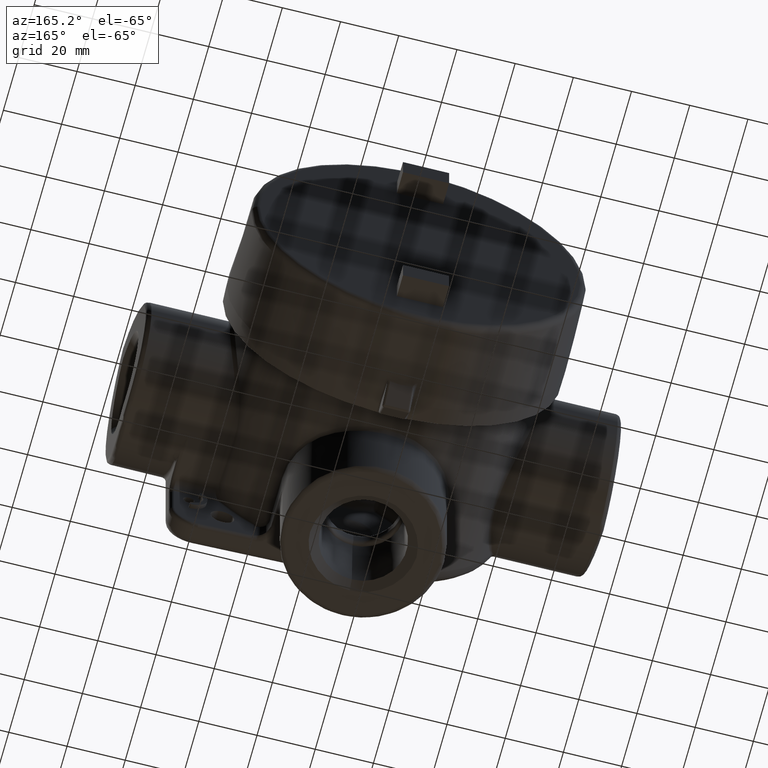
[diagram: clean part render]
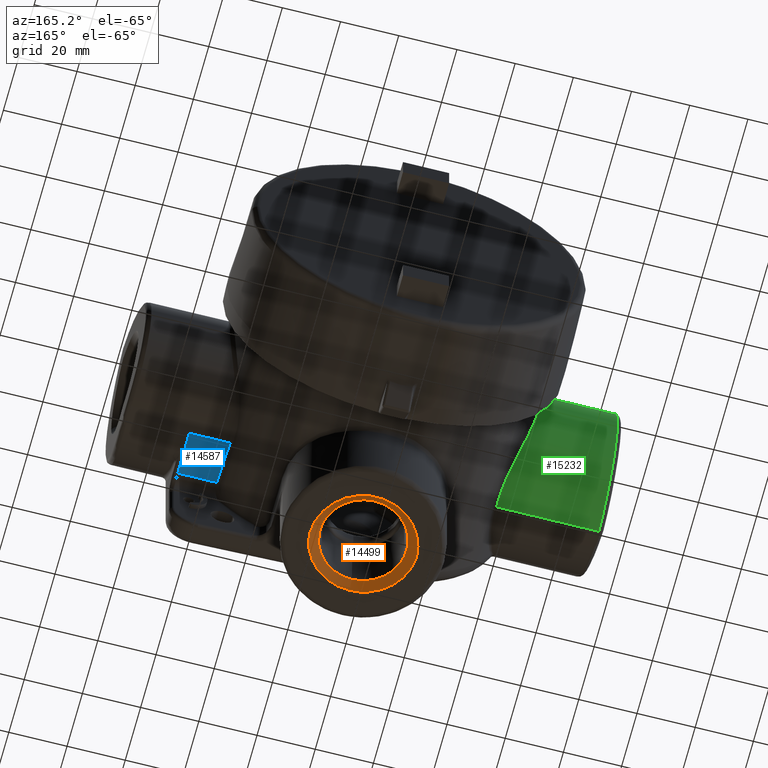
[diagram: same view with three faces highlighted in distinct colors, each labeled with its STEP entity id]
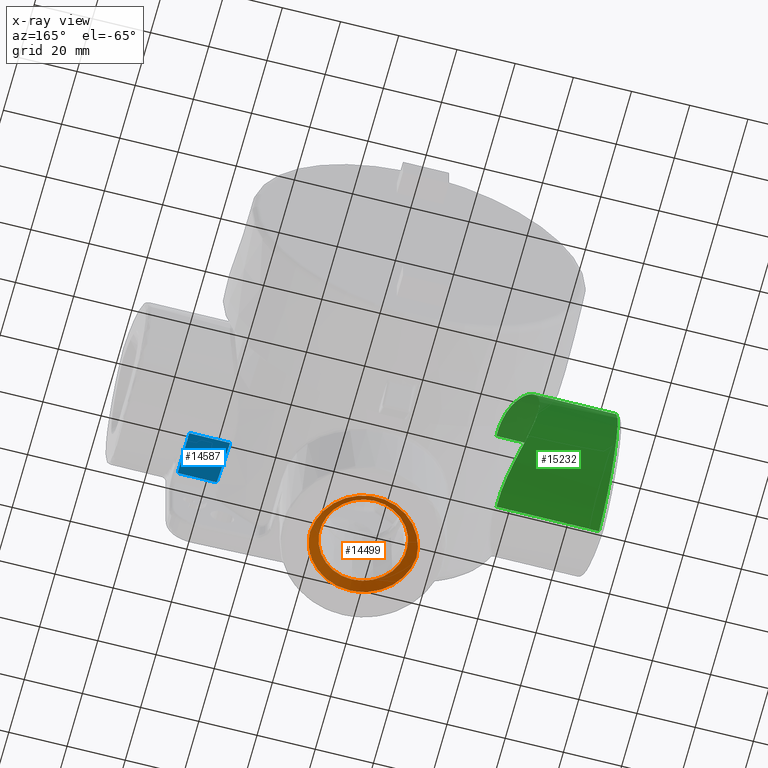
[diagram: x-ray of the same camera — body ghosted, the three highlighted faces saturated]
A machine part, auxiliary view with three faces highlighted in distinct colors.
The next image is the same camera in x-ray (body ghosted, the three faces saturated) — at least one of them is partly hidden behind the body in this view.
Their STEP definitions:

[orange] entity #14499 — the highlighted conical surface has half-angle 45 deg.
#59=ELLIPSE('',#15497,0.721819406663314,0.72093971271617);
#60=ELLIPSE('',#15498,0.721819406663387,0.720939712716097);
#61=ELLIPSE('',#15499,0.721819406663314,0.72093971271617);
#840=LINE('',#25029,#2115);
#2115=VECTOR('',#16754,0.653);
#3294=CONICAL_SURFACE('',#15496,0.653,0.78539816339745);
#3367=FACE_OUTER_BOUND('',#4245,.T.);
#4245=EDGE_LOOP('',(#10136,#10137,#10138,#10139,#10140,#10141,#10142));
#5731=CIRCLE('',#15500,0.5855);
#5732=CIRCLE('',#15501,0.5855);
#6255=VERTEX_POINT('',#25022);
#6256=VERTEX_POINT('',#25023);
#6257=VERTEX_POINT('',#25025);
#6258=VERTEX_POINT('',#25028);
#6259=VERTEX_POINT('',#25030);
#7752=EDGE_CURVE('',#6255,#6256,#59,.T.);
#7753=EDGE_CURVE('',#6257,#6255,#60,.T.);
#7754=EDGE_CURVE('',#6256,#6257,#61,.T.);
#7755=EDGE_CURVE('',#6256,#6258,#840,.T.);
#7756=EDGE_CURVE('',#6258,#6259,#5731,.T.);
#7757=EDGE_CURVE('',#6259,#6258,#5732,.T.);
#10136=ORIENTED_EDGE('',*,*,#7752,.F.);
#10137=ORIENTED_EDGE('',*,*,#7753,.F.);
#10138=ORIENTED_EDGE('',*,*,#7754,.F.);
#10139=ORIENTED_EDGE('',*,*,#7755,.T.);
#10140=ORIENTED_EDGE('',*,*,#7756,.T.);
#10141=ORIENTED_EDGE('',*,*,#7757,.T.);
#10142=ORIENTED_EDGE('',*,*,#7755,.F.);
#14499=ADVANCED_FACE('',(#3367),#3294,.F.);
#15496=AXIS2_PLACEMENT_3D('',#25021,#16746,#16747);
#15497=AXIS2_PLACEMENT_3D('',#25024,#16748,#16749);
#15498=AXIS2_PLACEMENT_3D('',#25026,#16750,#16751);
#15499=AXIS2_PLACEMENT_3D('',#25027,#16752,#16753);
#15500=AXIS2_PLACEMENT_3D('',#25031,#16755,#16756);
#15501=AXIS2_PLACEMENT_3D('',#25032,#16757,#16758);
#16746=DIRECTION('center_axis',(6.12323399573677E-17,0.,-1.));
#16747=DIRECTION('ref_axis',(0.,1.,0.));
#16748=DIRECTION('center_axis',(-6.11950388703081E-17,0.034899496702501,
0.999390827019096));
#16749=DIRECTION('ref_axis',(5.81227290568489E-15,-0.999390827019096,0.0348994967025009));
#16750=DIRECTION('center_axis',(-6.11950388703081E-17,-0.034899496702501,
0.999390827019096));
#16751=DIRECTION('ref_axis',(-1.42712772579923E-13,-0.999390827019096,-0.0348994967025011));
#16752=DIRECTION('center_axis',(-6.11950388703081E-17,0.034899496702501,
0.999390827019096));
#16753=DIRECTION('ref_axis',(5.81227290568489E-15,-0.999390827019096,0.0348994967025009));
#16754=DIRECTION('',(-1.29893408435324E-16,0.707106781186548,0.707106781186547));
#16755=DIRECTION('center_axis',(-6.12323399573677E-17,0.,1.));
#16756=DIRECTION('ref_axis',(0.,1.,0.));
#16757=DIRECTION('center_axis',(-6.12323399573677E-17,0.,1.));
#16758=DIRECTION('ref_axis',(0.,1.,0.));
#25021=CARTESIAN_POINT('Origin',(1.94871921914323E-16,-2.4056,-3.1825));
#25022=CARTESIAN_POINT('',(-0.7205,-2.4056,-3.25));
#25023=CARTESIAN_POINT('',(2.82774967622993E-16,-3.10178855978103,-3.22568855978109));
#25024=CARTESIAN_POINT('Origin',(2.62257407391769E-16,-2.38040886599735,
-3.25087969378374));
#25025=CARTESIAN_POINT('',(0.7205,-2.4056,-3.25));
#25026=CARTESIAN_POINT('Origin',(-8.74191357972564E-17,-2.43079113400265,
-3.25087969378374));
#25027=CARTESIAN_POINT('Origin',(2.62257407391769E-16,-2.38040886599735,
-3.25087969378374));
#25028=CARTESIAN_POINT('',(2.62441809057278E-16,-2.9911,-3.115));
#25029=CARTESIAN_POINT('',(2.74841357898645E-16,-3.0586,-3.1825));
#25030=CARTESIAN_POINT('',(1.907387389672E-16,-1.8201,-3.115));
#25031=CARTESIAN_POINT('Origin',(1.907387389672E-16,-2.4056,-3.115));
#25032=CARTESIAN_POINT('Origin',(1.907387389672E-16,-2.4056,-3.115));

[blue] entity #14587 — the highlighted planar face has unit normal (0, 0, -1).
#307=PLANE('',#15656);
#1022=LINE('',#25816,#2297);
#1029=LINE('',#25955,#2304);
#1030=LINE('',#25961,#2305);
#2297=VECTOR('',#17214,0.393700787401575);
#2304=VECTOR('',#17257,0.393700787401575);
#2305=VECTOR('',#17258,0.393700787401575);
#3455=FACE_OUTER_BOUND('',#4337,.T.);
#4337=EDGE_LOOP('',(#10619,#10620,#10621,#10622));
#5231=B_SPLINE_CURVE_WITH_KNOTS('',3,(#25957,#25958,#25959,#25960),
 .UNSPECIFIED.,.F.,.F.,(4,4),(0.,1.51106223936381),.UNSPECIFIED.);
#6432=VERTEX_POINT('',#25648);
#6443=VERTEX_POINT('',#25814);
#6457=VERTEX_POINT('',#25954);
#6458=VERTEX_POINT('',#25956);
#8014=EDGE_CURVE('',#6443,#6432,#1022,.T.);
#8035=EDGE_CURVE('',#6457,#6443,#1029,.T.);
#8036=EDGE_CURVE('',#6458,#6457,#5231,.T.);
#8037=EDGE_CURVE('',#6432,#6458,#1030,.T.);
#10619=ORIENTED_EDGE('',*,*,#8014,.F.);
#10620=ORIENTED_EDGE('',*,*,#8035,.F.);
#10621=ORIENTED_EDGE('',*,*,#8036,.F.);
#10622=ORIENTED_EDGE('',*,*,#8037,.F.);
#14587=ADVANCED_FACE('',(#3455),#307,.T.);
#15656=AXIS2_PLACEMENT_3D('',#25953,#17255,#17256);
#17214=DIRECTION('',(0.,1.,0.));
#17255=DIRECTION('center_axis',(0.,0.,-1.));
#17256=DIRECTION('ref_axis',(-1.,0.,0.));
#17257=DIRECTION('',(1.,1.82892759761091E-30,0.));
#17258=DIRECTION('',(-1.,0.,0.));
#25648=CARTESIAN_POINT('',(2.354,-2.4056,-1.094));
#25814=CARTESIAN_POINT('',(2.354,-3.,-1.094));
#25816=CARTESIAN_POINT('',(2.354,-3.5,-1.094));
#25953=CARTESIAN_POINT('Origin',(2.414,-3.5,-1.094));
#25954=CARTESIAN_POINT('',(1.82603284451908,-3.,-1.094));
#25955=CARTESIAN_POINT('',(1.8105,-3.,-1.094));
#25956=CARTESIAN_POINT('',(1.80149192016675,-2.4056,-1.094));
#25957=CARTESIAN_POINT('Ctrl Pts',(1.80149192016675,-2.4056,-1.094));
#25958=CARTESIAN_POINT('Ctrl Pts',(1.80968805917339,-2.60373267909171,-1.094));
#25959=CARTESIAN_POINT('Ctrl Pts',(1.81786815468551,-2.801866022453,-1.094));
#25960=CARTESIAN_POINT('Ctrl Pts',(1.82603284451908,-3.,-1.094));
#25961=CARTESIAN_POINT('',(3.25,-2.4056,-1.094));

[green] entity #15232 — the highlighted cylindrical surface (partial cylindrical patch) has radius 27.7876 mm, axis along (1, 0, 0).
#95=ELLIPSE('',#16253,1.09459284491548,1.094);
#732=CYLINDRICAL_SURFACE('',#16256,1.094);
#1967=LINE('',#54325,#3242);
#1968=LINE('',#54326,#3243);
#1969=LINE('',#54327,#3244);
#3242=VECTOR('',#19395,0.393700787401575);
#3243=VECTOR('',#19396,0.393700787401575);
#3244=VECTOR('',#19397,0.393700787401575);
#4100=FACE_OUTER_BOUND('',#5019,.T.);
#5019=EDGE_LOOP('',(#13844,#13845,#13846,#13847,#13848));
#5318=B_SPLINE_CURVE_WITH_KNOTS('',3,(#49142,#49143,#49144,#49145,#49146,
#49147,#49148,#49149,#49150,#49151,#49152,#49153,#49154,#49155,#49156,#49157,
#49158,#49159,#49160,#49161),.UNSPECIFIED.,.F.,.F.,(4,1,1,1,1,1,1,1,1,1,
1,1,1,1,1,1,1,4),(0.122853575341102,0.782145337684376,1.27661754154341,
1.44144160949642,2.43038601721449,2.76003415312051,4.0786266967446,4.51815754461929,
4.95768839249399,5.39721924036869,5.83675008824338,6.71581178399278,7.0454599198988,
8.03440432761687,8.19922839556988,8.69370059942891,8.85852466738192,9.35299236180248),
 .UNSPECIFIED.);
#6476=VERTEX_POINT('',#26122);
#6607=VERTEX_POINT('',#49032);
#6608=VERTEX_POINT('',#49141);
#7351=VERTEX_POINT('',#54213);
#7352=VERTEX_POINT('',#54242);
#8344=EDGE_CURVE('',#6607,#6608,#5318,.T.);
#9538=EDGE_CURVE('',#7351,#7352,#95,.T.);
#9542=EDGE_CURVE('',#6607,#7352,#1967,.T.);
#9543=EDGE_CURVE('',#7351,#6476,#1968,.T.);
#9544=EDGE_CURVE('',#6476,#6608,#1969,.T.);
#13844=ORIENTED_EDGE('',*,*,#8344,.F.);
#13845=ORIENTED_EDGE('',*,*,#9542,.T.);
#13846=ORIENTED_EDGE('',*,*,#9538,.F.);
#13847=ORIENTED_EDGE('',*,*,#9543,.T.);
#13848=ORIENTED_EDGE('',*,*,#9544,.T.);
#15232=ADVANCED_FACE('',(#4100),#732,.T.);
#16253=AXIS2_PLACEMENT_3D('',#54243,#19387,#19388);
#16256=AXIS2_PLACEMENT_3D('',#54324,#19393,#19394);
#19387=DIRECTION('center_axis',(-0.999458387729983,0.0329079199613435,0.));
#19388=DIRECTION('ref_axis',(0.0329079199613435,0.999458387729983,4.03005788472565E-18));
#19393=DIRECTION('center_axis',(1.,0.,1.22464679914735E-16));
#19394=DIRECTION('ref_axis',(-1.49975978266186E-32,1.,1.22464679914735E-16));
#19395=DIRECTION('',(-1.,0.,-1.22464679914735E-16));
#19396=DIRECTION('',(1.,0.,1.22464679914735E-16));
#19397=DIRECTION('',(1.,0.,1.22464679914735E-16));
#26122=CARTESIAN_POINT('',(-2.474,-2.4056,1.094));
#49032=CARTESIAN_POINT('',(-1.80145581694765,-2.4056,-1.094));
#49141=CARTESIAN_POINT('',(-1.80145581694765,-2.4056,1.094));
#49142=CARTESIAN_POINT('Ctrl Pts',(-1.80149185273825,-2.40559844121417,
-1.09399999999889));
#49143=CARTESIAN_POINT('Ctrl Pts',(-1.7979099326214,-2.32279208397952,-1.09399988227258));
#49144=CARTESIAN_POINT('Ctrl Pts',(-1.80276543522672,-2.17783617185859,
-1.0775801478894));
#49145=CARTESIAN_POINT('Ctrl Pts',(-1.82862594236002,-2.01911018776055,
-1.02609192321167));
#49146=CARTESIAN_POINT('Ctrl Pts',(-1.8705495582966,-1.83388943447796,-0.942270079293841));
#49147=CARTESIAN_POINT('Ctrl Pts',(-1.9218761171887,-1.68384238290066,-0.834883092771865));
#49148=CARTESIAN_POINT('Ctrl Pts',(-2.01168049293293,-1.46937436190798,
-0.595201388558945));
#49149=CARTESIAN_POINT('Ctrl Pts',(-2.07237924608764,-1.35260442289251,
-0.35876870611461));
#49150=CARTESIAN_POINT('Ctrl Pts',(-2.0945861593591,-1.31058448005911,-0.0829804080559098));
#49151=CARTESIAN_POINT('Ctrl Pts',(-2.09470554353019,-1.31047560463128,
0.0829041389026612));
#49152=CARTESIAN_POINT('Ctrl Pts',(-2.081066759036,-1.33596946040921,0.24869591946773));
#49153=CARTESIAN_POINT('Ctrl Pts',(-2.04713040373329,-1.40149665527221,
0.457906015408148));
#49154=CARTESIAN_POINT('Ctrl Pts',(-1.99650949635692,-1.50531009395242,
0.635512343089143));
#49155=CARTESIAN_POINT('Ctrl Pts',(-1.92197244013593,-1.68375982710678,
0.834692701824045));
#49156=CARTESIAN_POINT('Ctrl Pts',(-1.87051744162719,-1.83391674050378,
0.942349272286081));
#49157=CARTESIAN_POINT('Ctrl Pts',(-1.82863200656564,-2.01910500179363,
1.02605721063786));
#49158=CARTESIAN_POINT('Ctrl Pts',(-1.81248005244972,-2.11829592885633,
1.05830299457725));
#49159=CARTESIAN_POINT('Ctrl Pts',(-1.79997220333632,-2.26069353757506,
1.08691602620375));
#49160=CARTESIAN_POINT('Ctrl Pts',(-1.79880541852031,-2.34349381522374,
1.09399991106328));
#49161=CARTESIAN_POINT('Ctrl Pts',(-1.80149185273825,-2.40559844121418,
1.09399999999888));
#54213=CARTESIAN_POINT('',(-3.18746190348132,-2.4056,1.094));
#54242=CARTESIAN_POINT('',(-3.18746190348132,-2.4056,-1.094));
#54243=CARTESIAN_POINT('Origin',(-3.18746190348132,-2.4056,-3.90351501750253E-16));
#54324=CARTESIAN_POINT('Origin',(-3.25,-2.4056,-3.9801020972289E-16));
#54325=CARTESIAN_POINT('',(-3.25,-2.4056,-1.094));
#54326=CARTESIAN_POINT('',(-3.25,-2.4056,1.094));
#54327=CARTESIAN_POINT('',(-3.25,-2.4056,1.094));